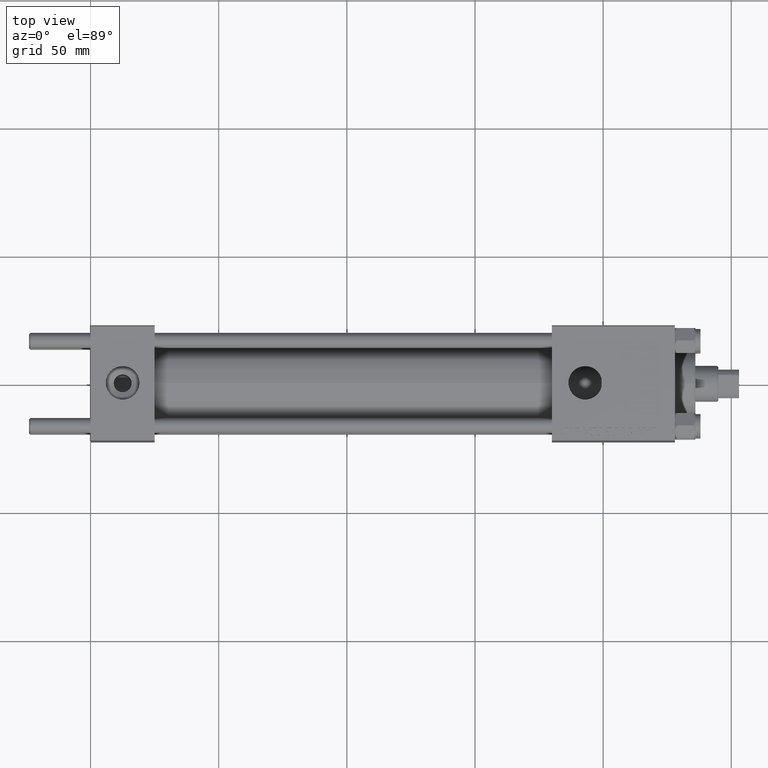
[diagram: clean part render]
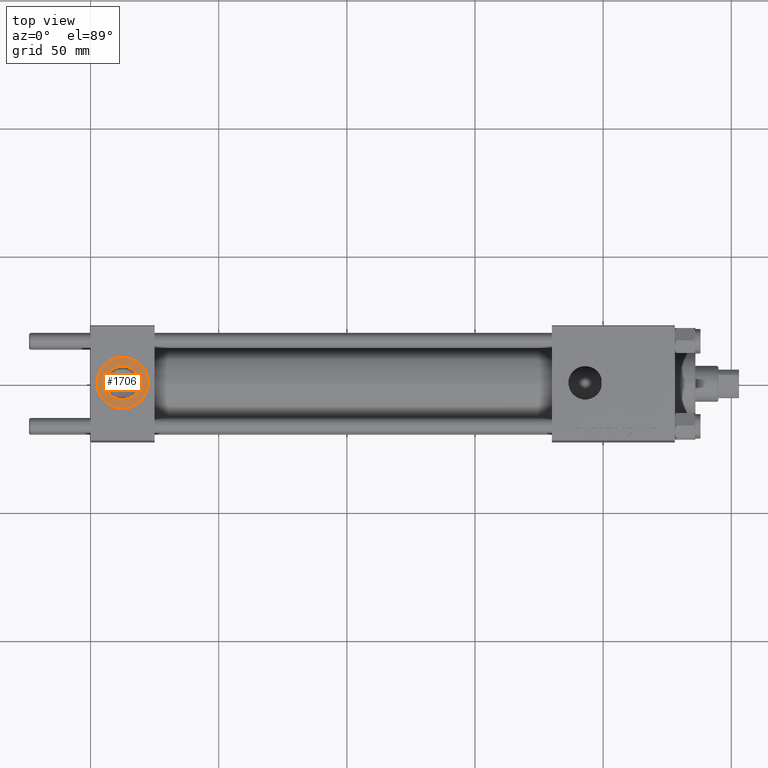
[diagram: same view with one face highlighted and labeled with its STEP entity id]
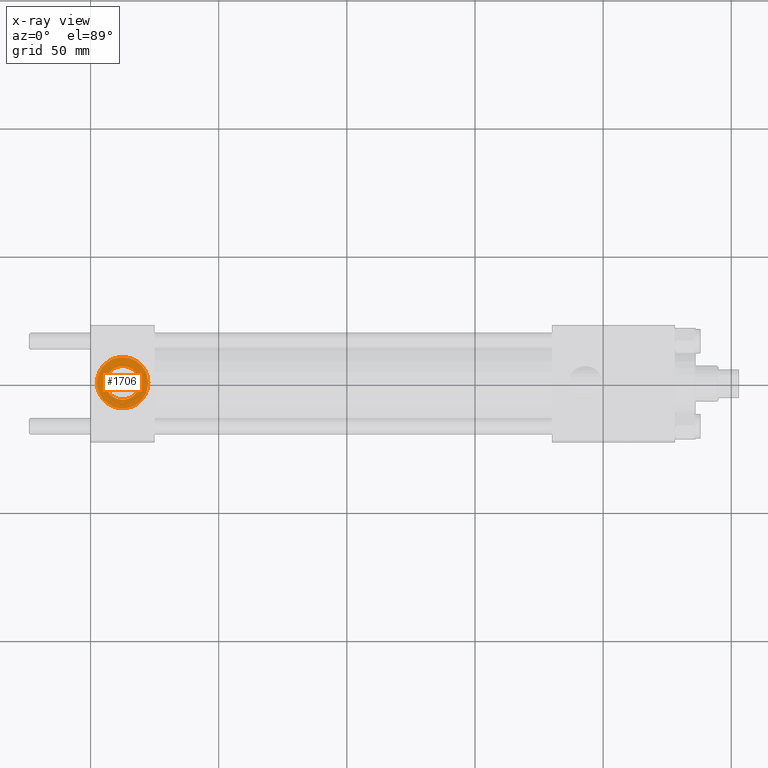
[diagram: x-ray of the same camera — body ghosted, the highlighted face saturated]
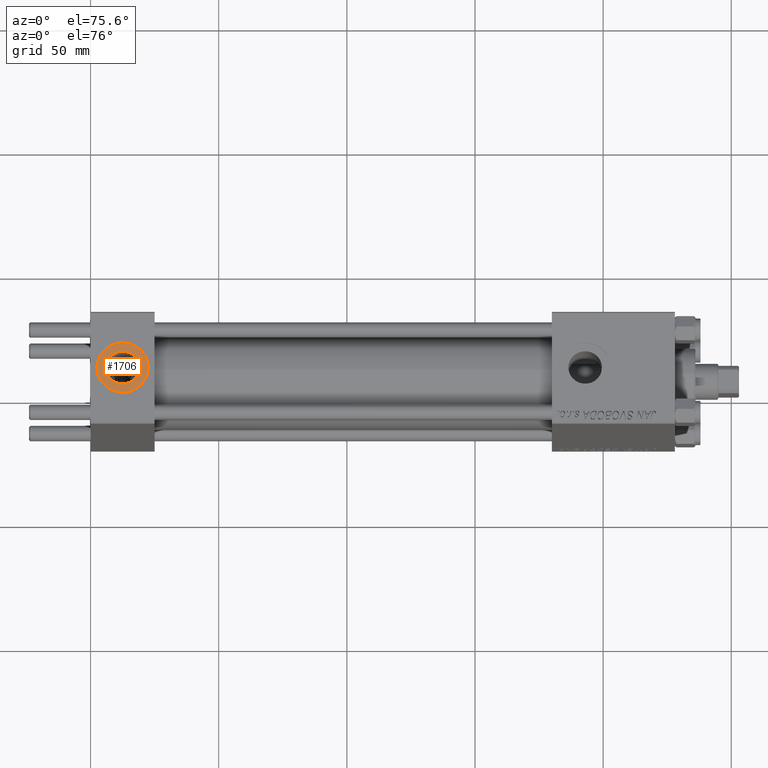
[diagram: same view with one face highlighted and labeled with its STEP entity id]
A machine part, top view. The second image highlights one B-rep face of the part: STEP entity #1706.
The next image is the same camera in x-ray: the body ghosted, the highlighted face saturated — about 0% of this face is hidden behind the body in this view.
A second angle (auxiliary view) of the same face is appended — the face is thin or edge-on in the first view.
In plain terms, the highlighted planar face has unit normal (0, 0, 1).
Its self-contained STEP definition (entity closure, byte-faithful):
#1706 = ADVANCED_FACE ( 'NONE', ( #18960, #26309 ), #42062, .T. ) ;
#3898 = VERTEX_POINT ( 'NONE', #28120 ) ;
#4818 = EDGE_LOOP ( 'NONE', ( #31824, #50385 ) ) ;
#6002 = DIRECTION ( 'NONE',  ( 0.000000000000000000, 0.000000000000000000, 1.000000000000000000 ) ) ;
#9232 = AXIS2_PLACEMENT_3D ( 'NONE', #50721, #10324, #15025 ) ;
#10026 = EDGE_CURVE ( 'NONE', #15761, #3898, #47984, .T. ) ;
#10324 = DIRECTION ( 'NONE',  ( 0.000000000000000000, 0.000000000000000000, 1.000000000000000000 ) ) ;
#12861 = DIRECTION ( 'NONE',  ( 1.000000000000000000, 0.000000000000000000, 0.000000000000000000 ) ) ;
#13004 = VERTEX_POINT ( 'NONE', #16304 ) ;
#14402 = EDGE_CURVE ( 'NONE', #13004, #30883, #29676, .T. ) ;
#15025 = DIRECTION ( 'NONE',  ( 1.000000000000000000, 0.000000000000000000, -0.000000000000000000 ) ) ;
#15761 = VERTEX_POINT ( 'NONE', #50742 ) ;
#16304 = CARTESIAN_POINT ( 'NONE',  ( 5.920000000000002593, -9.289058821378490386E-16, 22.30000000000000071 ) ) ;
#18318 = ORIENTED_EDGE ( 'NONE', *, *, #10026, .T. ) ;
#18535 = EDGE_LOOP ( 'NONE', ( #18318, #37698 ) ) ;
#18960 = FACE_BOUND ( 'NONE', #4818, .T. ) ;
#19496 = CIRCLE ( 'NONE', #22020, 9.999999999999998224 ) ;
#22020 = AXIS2_PLACEMENT_3D ( 'NONE', #23298, #43503, #47468 ) ;
#23223 = AXIS2_PLACEMENT_3D ( 'NONE', #28344, #33045, #12861 ) ;
#23298 = CARTESIAN_POINT ( 'NONE',  ( 12.50000000000000000, -1.734723475976807094E-15, 22.30000000000000071 ) ) ;
#23750 = DIRECTION ( 'NONE',  ( 1.000000000000000000, 0.000000000000000000, 0.000000000000000000 ) ) ;
#26309 = FACE_OUTER_BOUND ( 'NONE', #18535, .T. ) ;
#26488 = CARTESIAN_POINT ( 'NONE',  ( 19.07999999999999829, -1.734723475976807094E-15, 22.30000000000000071 ) ) ;
#27689 = CARTESIAN_POINT ( 'NONE',  ( 12.50000000000000000, -1.734723475976807094E-15, 22.30000000000000071 ) ) ;
#28120 = CARTESIAN_POINT ( 'NONE',  ( 2.500000000000003997, -5.100766768294543310E-16, 22.30000000000000071 ) ) ;
#28344 = CARTESIAN_POINT ( 'NONE',  ( 12.50000000000000000, -1.734723475976807094E-15, 22.30000000000000071 ) ) ;
#28883 = AXIS2_PLACEMENT_3D ( 'NONE', #41933, #6002, #33274 ) ;
#29676 = CIRCLE ( 'NONE', #28883, 6.579999999999999183 ) ;
#30883 = VERTEX_POINT ( 'NONE', #26488 ) ;
#31241 = AXIS2_PLACEMENT_3D ( 'NONE', #27689, #51059, #23750 ) ;
#31824 = ORIENTED_EDGE ( 'NONE', *, *, #48533, .F. ) ;
#33045 = DIRECTION ( 'NONE',  ( 0.000000000000000000, 0.000000000000000000, 1.000000000000000000 ) ) ;
#33274 = DIRECTION ( 'NONE',  ( 1.000000000000000000, 0.000000000000000000, 0.000000000000000000 ) ) ;
#33817 = EDGE_CURVE ( 'NONE', #3898, #15761, #19496, .T. ) ;
#37698 = ORIENTED_EDGE ( 'NONE', *, *, #33817, .T. ) ;
#41933 = CARTESIAN_POINT ( 'NONE',  ( 12.50000000000000000, -1.734723475976807094E-15, 22.30000000000000071 ) ) ;
#42062 = PLANE ( 'NONE',  #9232 ) ;
#43503 = DIRECTION ( 'NONE',  ( 0.000000000000000000, 0.000000000000000000, 1.000000000000000000 ) ) ;
#47468 = DIRECTION ( 'NONE',  ( 1.000000000000000000, 0.000000000000000000, 0.000000000000000000 ) ) ;
#47984 = CIRCLE ( 'NONE', #31241, 9.999999999999998224 ) ;
#48533 = EDGE_CURVE ( 'NONE', #30883, #13004, #51705, .T. ) ;
#50385 = ORIENTED_EDGE ( 'NONE', *, *, #14402, .F. ) ;
#50721 = CARTESIAN_POINT ( 'NONE',  ( 12.50000000000000000, -1.734723475976807094E-15, 22.30000000000000071 ) ) ;
#50742 = CARTESIAN_POINT ( 'NONE',  ( 22.50000000000000000, -1.734723475976807094E-15, 22.30000000000000071 ) ) ;
#51059 = DIRECTION ( 'NONE',  ( 0.000000000000000000, 0.000000000000000000, 1.000000000000000000 ) ) ;
#51705 = CIRCLE ( 'NONE', #23223, 6.579999999999999183 ) ;